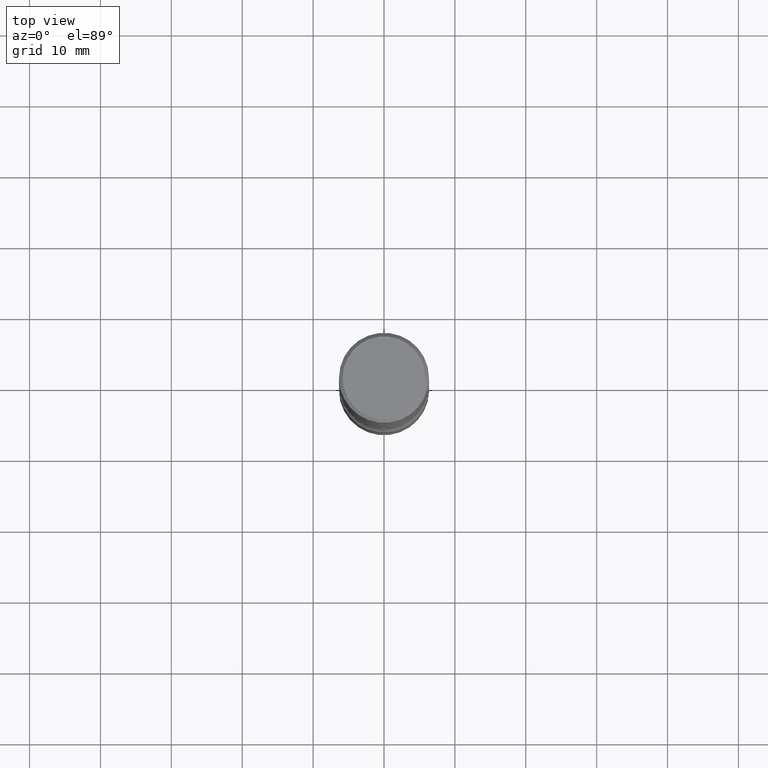
[diagram: clean part render]
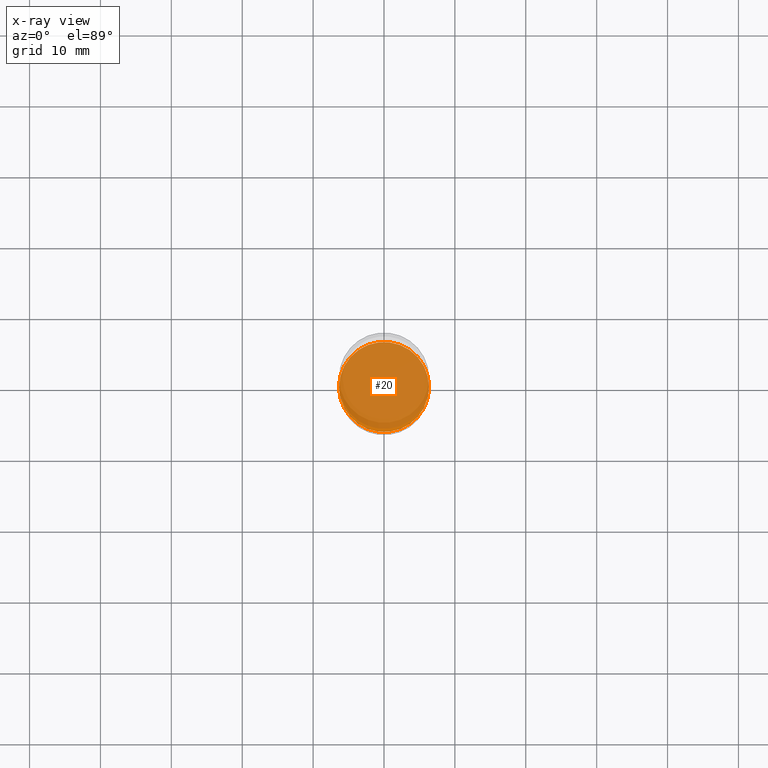
[diagram: x-ray — body ghosted, one internal face saturated and labeled with its STEP entity id]
A machine part, top view, then the same camera in x-ray: the body is ghosted and one INTERNAL B-rep face — a face not visible from any outside direction — is saturated and labeled: STEP entity #20.
In plain terms, the highlighted planar face has unit normal (0, -0, -1).
Its self-contained STEP definition (entity closure, byte-faithful):
#20 = ADVANCED_FACE ( 'NONE', ( #111 ), #194, .F. ) ;
#24 = CARTESIAN_POINT ( 'NONE',  ( 7.336406418555409790E-29, -1.047444401652943635E-14, -3.000000000000000444 ) ) ;
#26 = AXIS2_PLACEMENT_3D ( 'NONE', #307, #446, #453 ) ;
#40 = VERTEX_POINT ( 'NONE', #267 ) ;
#71 = DIRECTION ( 'NONE',  ( -2.445468806185136597E-29, 3.491481338843145583E-15, 1.000000000000000000 ) ) ;
#86 = EDGE_CURVE ( 'NONE', #40, #475, #482, .T. ) ;
#111 = FACE_OUTER_BOUND ( 'NONE', #491, .T. ) ;
#131 = ORIENTED_EDGE ( 'NONE', *, *, #196, .T. ) ;
#144 = DIRECTION ( 'NONE',  ( 2.438088387897960049E-29, -3.491481338843145188E-15, -1.000000000000000000 ) ) ;
#156 = ORIENTED_EDGE ( 'NONE', *, *, #86, .T. ) ;
#157 = CIRCLE ( 'NONE', #281, 0.2500000000000002776 ) ;
#194 = PLANE ( 'NONE',  #413 ) ;
#196 = EDGE_CURVE ( 'NONE', #475, #40, #157, .T. ) ;
#267 = CARTESIAN_POINT ( 'NONE',  ( -0.2500000000000002776, -1.041764173650943238E-14, -3.000000000000000444 ) ) ;
#281 = AXIS2_PLACEMENT_3D ( 'NONE', #24, #71, #285 ) ;
#285 = DIRECTION ( 'NONE',  ( 1.000000000000000000, -6.982962677686270655E-15, 0.000000000000000000 ) ) ;
#307 = CARTESIAN_POINT ( 'NONE',  ( 7.336406418555409790E-29, -1.047444401652943635E-14, -3.000000000000000444 ) ) ;
#316 = DIRECTION ( 'NONE',  ( -1.000000000000000000, 6.982962677686265922E-15, -4.876176775795935793E-29 ) ) ;
#413 = AXIS2_PLACEMENT_3D ( 'NONE', #456, #144, #316 ) ;
#446 = DIRECTION ( 'NONE',  ( -2.445468806185136597E-29, 3.491481338843145583E-15, 1.000000000000000000 ) ) ;
#453 = DIRECTION ( 'NONE',  ( 1.000000000000000000, -6.982962677686270655E-15, 0.000000000000000000 ) ) ;
#456 = CARTESIAN_POINT ( 'NONE',  ( 7.336406418555409790E-29, -1.047444401652943635E-14, -3.000000000000000444 ) ) ;
#466 = CARTESIAN_POINT ( 'NONE',  ( 0.2500000000000002776, -1.222018468595100619E-14, -3.000000000000000444 ) ) ;
#475 = VERTEX_POINT ( 'NONE', #466 ) ;
#482 = CIRCLE ( 'NONE', #26, 0.2500000000000002776 ) ;
#491 = EDGE_LOOP ( 'NONE', ( #131, #156 ) ) ;